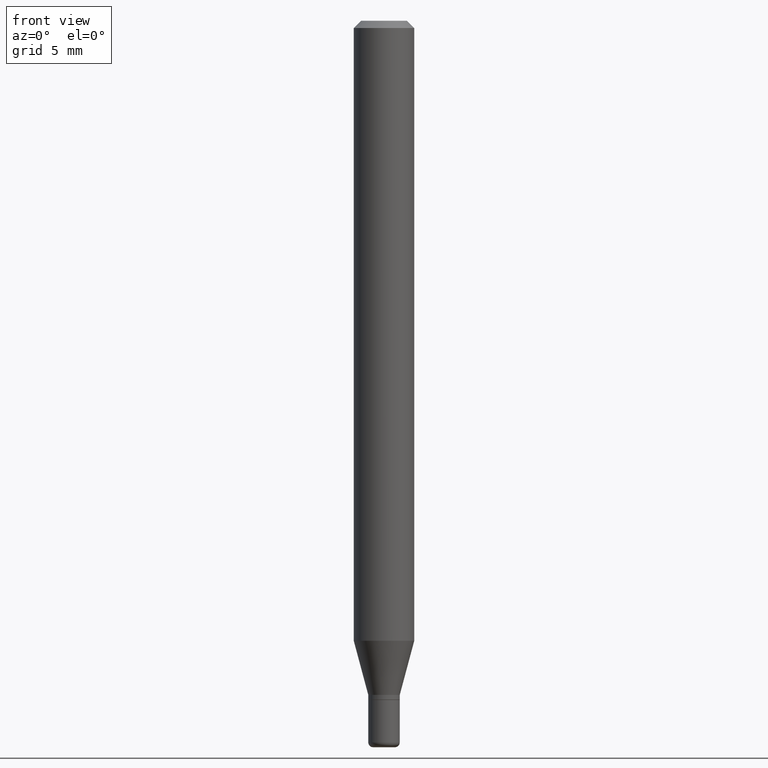
[diagram: clean part render]
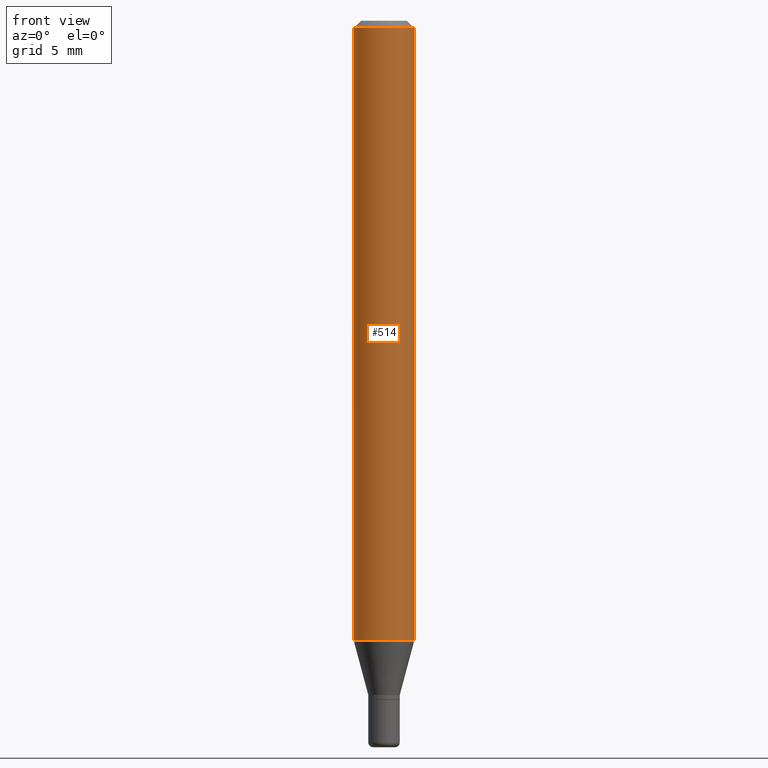
[diagram: same view with one face highlighted and labeled with its STEP entity id]
A machine part, front view. The second image highlights one B-rep face of the part: STEP entity #514.
In plain terms, the highlighted cylindrical surface (edge-blend (fillet) strip) has radius 1.5875 mm, axis along (-0, 0, 1).
Its self-contained STEP definition (entity closure, byte-faithful):
#4 = CARTESIAN_POINT ( 'NONE',  ( -0.06250000000000000000, 4.440892098500626162E-16, -3.074334431409316114E-30 ) ) ;
#15 = DIRECTION ( 'NONE',  ( -2.445468806185136597E-29, 3.491481338843145583E-15, 1.000000000000000000 ) ) ;
#20 = EDGE_CURVE ( 'NONE', #66, #347, #116, .T. ) ;
#34 = DIRECTION ( 'NONE',  ( 1.000000000000000000, -6.982962677686266711E-15, 0.000000000000000000 ) ) ;
#53 = EDGE_CURVE ( 'NONE', #440, #422, #123, .T. ) ;
#66 = VERTEX_POINT ( 'NONE', #402 ) ;
#76 = CARTESIAN_POINT ( 'NONE',  ( 0.000000000000000000, 0.000000000000000000, 0.000000000000000000 ) ) ;
#116 = LINE ( 'NONE', #325, #491 ) ;
#123 = LINE ( 'NONE', #4, #370 ) ;
#128 = DIRECTION ( 'NONE',  ( -2.445468806185136597E-29, 3.491481338843145583E-15, 1.000000000000000000 ) ) ;
#131 = ORIENTED_EDGE ( 'NONE', *, *, #53, .F. ) ;
#132 = CARTESIAN_POINT ( 'NONE',  ( 3.668203209277632395E-31, -5.237222008264614861E-17, -0.01499999999999970281 ) ) ;
#152 = ORIENTED_EDGE ( 'NONE', *, *, #495, .F. ) ;
#158 = EDGE_LOOP ( 'NONE', ( #131, #510, #387, #152 ) ) ;
#189 = EDGE_CURVE ( 'NONE', #440, #66, #432, .T. ) ;
#195 = DIRECTION ( 'NONE',  ( 1.000000000000000000, -6.982962677686266711E-15, 4.876176775795935793E-29 ) ) ;
#210 = AXIS2_PLACEMENT_3D ( 'NONE', #217, #15, #292 ) ;
#217 = CARTESIAN_POINT ( 'NONE',  ( 3.130294163219477608E-29, -4.469230451162420630E-15, -1.280038475772933504 ) ) ;
#241 = DIRECTION ( 'NONE',  ( -2.445468806185136877E-29, 3.491481338843145188E-15, 1.000000000000000000 ) ) ;
#242 = DIRECTION ( 'NONE',  ( -2.445468806185136597E-29, 3.491481338843145583E-15, 1.000000000000000000 ) ) ;
#247 = AXIS2_PLACEMENT_3D ( 'NONE', #132, #242, #34 ) ;
#292 = DIRECTION ( 'NONE',  ( 1.000000000000000000, -6.982962677686262766E-15, 0.000000000000000000 ) ) ;
#300 = CARTESIAN_POINT ( 'NONE',  ( 0.06250000000000000000, -4.888073874380378612E-16, -0.01499999999999970281 ) ) ;
#325 = CARTESIAN_POINT ( 'NONE',  ( 0.06250000000000000000, -4.364351673553916694E-16, 3.047610484872459871E-30 ) ) ;
#347 = VERTEX_POINT ( 'NONE', #300 ) ;
#370 = VECTOR ( 'NONE', #478, 39.37007874015748143 ) ;
#378 = AXIS2_PLACEMENT_3D ( 'NONE', #76, #128, #195 ) ;
#387 = ORIENTED_EDGE ( 'NONE', *, *, #20, .T. ) ;
#393 = CYLINDRICAL_SURFACE ( 'NONE', #378, 0.06250000000000000000 ) ;
#401 = CARTESIAN_POINT ( 'NONE',  ( -0.06250000000000000000, -4.025141241312358014E-15, -1.280038475772933504 ) ) ;
#402 = CARTESIAN_POINT ( 'NONE',  ( 0.06250000000000000000, -4.905665618517812299E-15, -1.280038475772933504 ) ) ;
#417 = CIRCLE ( 'NONE', #247, 0.06250000000000000000 ) ;
#421 = CARTESIAN_POINT ( 'NONE',  ( -0.06250000000000000000, -1.816712125772470647E-15, -0.01499999999999970281 ) ) ;
#422 = VERTEX_POINT ( 'NONE', #421 ) ;
#432 = CIRCLE ( 'NONE', #210, 0.06250000000000000000 ) ;
#440 = VERTEX_POINT ( 'NONE', #401 ) ;
#478 = DIRECTION ( 'NONE',  ( -2.445468806185136877E-29, 3.491481338843145188E-15, 1.000000000000000000 ) ) ;
#486 = FACE_OUTER_BOUND ( 'NONE', #158, .T. ) ;
#491 = VECTOR ( 'NONE', #241, 39.37007874015748143 ) ;
#495 = EDGE_CURVE ( 'NONE', #422, #347, #417, .T. ) ;
#510 = ORIENTED_EDGE ( 'NONE', *, *, #189, .T. ) ;
#514 = ADVANCED_FACE ( 'NONE', ( #486 ), #393, .T. ) ;